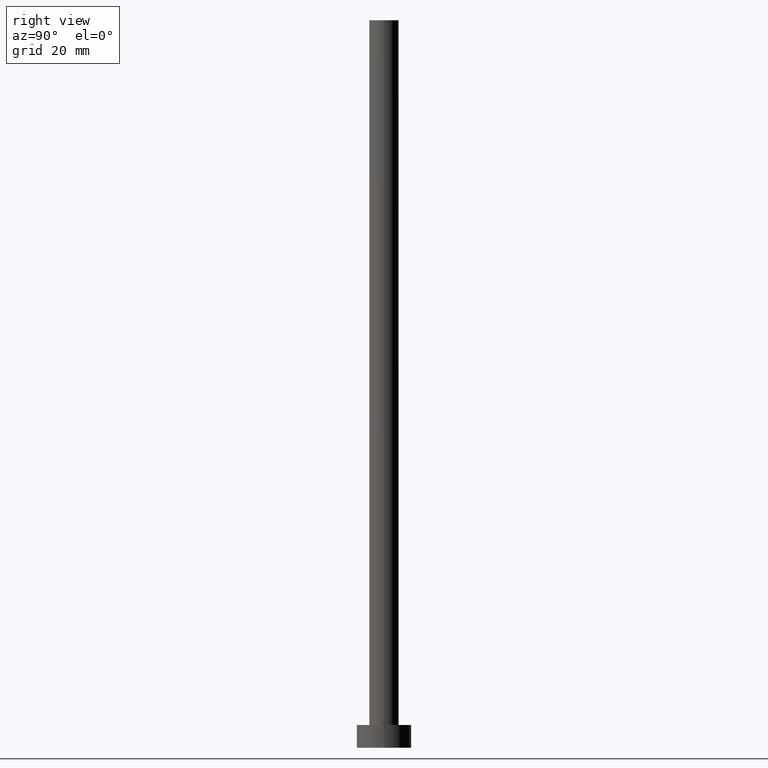
[diagram: clean part render]
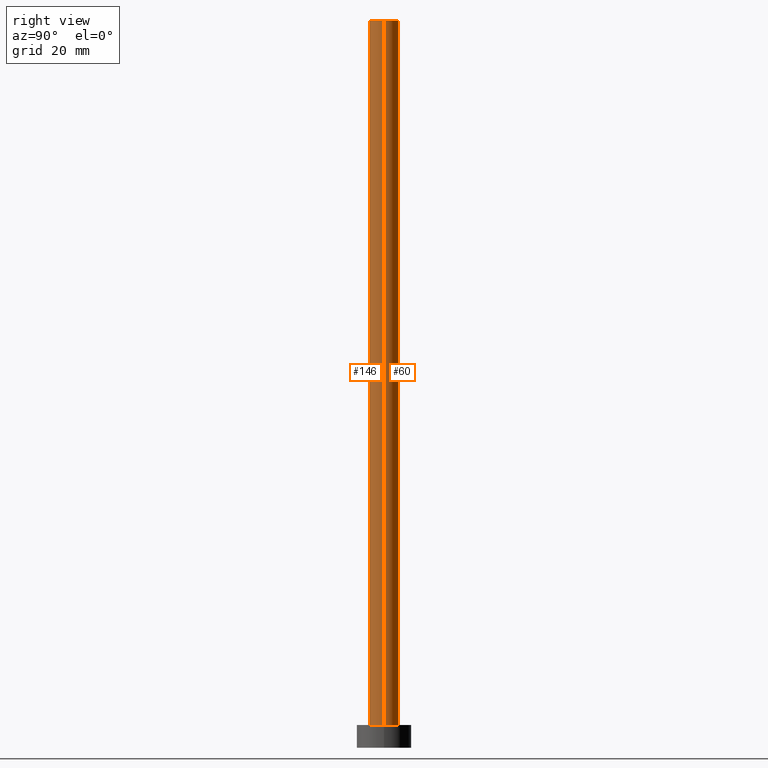
[diagram: same view with one multi-face feature highlighted, each face labeled with its STEP entity id]
A machine part, right view. The highlighted faces form ONE feature: a constant-radius fillet chain: 2 tangent blend faces with common blend radius 3.25 mm. The faces share edges in the B-rep.
Their STEP definitions:
[1] entity #60 (Cylinder):
#11 = CARTESIAN_POINT ( 'NONE',  ( 0.000000000000000000, 0.000000000000000000, 160.0000000000000000 ) ) ;
#13 = DIRECTION ( 'NONE',  ( -0.000000000000000000, -0.000000000000000000, -1.000000000000000000 ) ) ;
#16 = LINE ( 'NONE', #176, #105 ) ;
#24 = ORIENTED_EDGE ( 'NONE', *, *, #75, .F. ) ;
#31 = CIRCLE ( 'NONE', #249, 3.250000000000000444 ) ;
#32 = CARTESIAN_POINT ( 'NONE',  ( 0.000000000000000000, 0.000000000000000000, 160.0000000000000000 ) ) ;
#38 = ORIENTED_EDGE ( 'NONE', *, *, #86, .F. ) ;
#40 = VERTEX_POINT ( 'NONE', #66 ) ;
#56 = CARTESIAN_POINT ( 'NONE',  ( 3.250000000000000444, 3.980102097228898231E-16, 5.000000000000000000 ) ) ;
#59 = AXIS2_PLACEMENT_3D ( 'NONE', #112, #223, #198 ) ;
#60 = ADVANCED_FACE ( 'NONE', ( #188 ), #207, .T. ) ;
#66 = CARTESIAN_POINT ( 'NONE',  ( -3.250000000000000444, 0.000000000000000000, 5.000000000000000000 ) ) ;
#68 = VERTEX_POINT ( 'NONE', #56 ) ;
#75 = EDGE_CURVE ( 'NONE', #84, #40, #16, .T. ) ;
#80 = DIRECTION ( 'NONE',  ( 0.000000000000000000, 0.000000000000000000, 1.000000000000000000 ) ) ;
#84 = VERTEX_POINT ( 'NONE', #222 ) ;
#86 = EDGE_CURVE ( 'NONE', #127, #84, #31, .T. ) ;
#104 = ORIENTED_EDGE ( 'NONE', *, *, #120, .T. ) ;
#105 = VECTOR ( 'NONE', #13, 1000.000000000000000 ) ;
#107 = CARTESIAN_POINT ( 'NONE',  ( 3.250000000000000444, 3.980102097228898231E-16, 160.0000000000000000 ) ) ;
#112 = CARTESIAN_POINT ( 'NONE',  ( 0.000000000000000000, 0.000000000000000000, 5.000000000000000000 ) ) ;
#120 = EDGE_CURVE ( 'NONE', #127, #68, #216, .T. ) ;
#127 = VERTEX_POINT ( 'NONE', #107 ) ;
#129 = DIRECTION ( 'NONE',  ( -0.000000000000000000, -0.000000000000000000, -1.000000000000000000 ) ) ;
#132 = EDGE_LOOP ( 'NONE', ( #38, #104, #174, #24 ) ) ;
#151 = EDGE_CURVE ( 'NONE', #68, #40, #200, .T. ) ;
#165 = CARTESIAN_POINT ( 'NONE',  ( 3.250000000000000444, 3.980102097228898231E-16, 160.0000000000000000 ) ) ;
#172 = DIRECTION ( 'NONE',  ( 1.000000000000000000, 0.000000000000000000, 0.000000000000000000 ) ) ;
#174 = ORIENTED_EDGE ( 'NONE', *, *, #151, .T. ) ;
#176 = CARTESIAN_POINT ( 'NONE',  ( -3.250000000000000444, 0.000000000000000000, 160.0000000000000000 ) ) ;
#180 = DIRECTION ( 'NONE',  ( -0.000000000000000000, -0.000000000000000000, -1.000000000000000000 ) ) ;
#188 = FACE_OUTER_BOUND ( 'NONE', #132, .T. ) ;
#191 = DIRECTION ( 'NONE',  ( -1.000000000000000000, 0.000000000000000000, 0.000000000000000000 ) ) ;
#198 = DIRECTION ( 'NONE',  ( 1.000000000000000000, 0.000000000000000000, 0.000000000000000000 ) ) ;
#200 = CIRCLE ( 'NONE', #59, 3.250000000000000444 ) ;
#207 = CYLINDRICAL_SURFACE ( 'NONE', #255, 3.250000000000000444 ) ;
#208 = VECTOR ( 'NONE', #180, 1000.000000000000000 ) ;
#216 = LINE ( 'NONE', #165, #208 ) ;
#222 = CARTESIAN_POINT ( 'NONE',  ( -3.250000000000000444, 0.000000000000000000, 160.0000000000000000 ) ) ;
#223 = DIRECTION ( 'NONE',  ( 0.000000000000000000, 0.000000000000000000, 1.000000000000000000 ) ) ;
#249 = AXIS2_PLACEMENT_3D ( 'NONE', #11, #80, #172 ) ;
#255 = AXIS2_PLACEMENT_3D ( 'NONE', #32, #129, #191 ) ;
[2] entity #146 (Cylinder):
#2 = FACE_OUTER_BOUND ( 'NONE', #61, .T. ) ;
#13 = DIRECTION ( 'NONE',  ( -0.000000000000000000, -0.000000000000000000, -1.000000000000000000 ) ) ;
#16 = LINE ( 'NONE', #176, #105 ) ;
#17 = AXIS2_PLACEMENT_3D ( 'NONE', #103, #232, #22 ) ;
#22 = DIRECTION ( 'NONE',  ( 1.000000000000000000, 0.000000000000000000, 0.000000000000000000 ) ) ;
#26 = DIRECTION ( 'NONE',  ( -1.000000000000000000, 0.000000000000000000, 0.000000000000000000 ) ) ;
#28 = CIRCLE ( 'NONE', #124, 3.250000000000000444 ) ;
#40 = VERTEX_POINT ( 'NONE', #66 ) ;
#47 = CARTESIAN_POINT ( 'NONE',  ( 0.000000000000000000, 0.000000000000000000, 160.0000000000000000 ) ) ;
#48 = EDGE_CURVE ( 'NONE', #84, #127, #149, .T. ) ;
#56 = CARTESIAN_POINT ( 'NONE',  ( 3.250000000000000444, 3.980102097228898231E-16, 5.000000000000000000 ) ) ;
#61 = EDGE_LOOP ( 'NONE', ( #119, #98, #213, #154 ) ) ;
#63 = CYLINDRICAL_SURFACE ( 'NONE', #126, 3.250000000000000444 ) ;
#66 = CARTESIAN_POINT ( 'NONE',  ( -3.250000000000000444, 0.000000000000000000, 5.000000000000000000 ) ) ;
#68 = VERTEX_POINT ( 'NONE', #56 ) ;
#75 = EDGE_CURVE ( 'NONE', #84, #40, #16, .T. ) ;
#84 = VERTEX_POINT ( 'NONE', #222 ) ;
#87 = DIRECTION ( 'NONE',  ( 1.000000000000000000, 0.000000000000000000, 0.000000000000000000 ) ) ;
#98 = ORIENTED_EDGE ( 'NONE', *, *, #48, .F. ) ;
#103 = CARTESIAN_POINT ( 'NONE',  ( 0.000000000000000000, 0.000000000000000000, 160.0000000000000000 ) ) ;
#105 = VECTOR ( 'NONE', #13, 1000.000000000000000 ) ;
#107 = CARTESIAN_POINT ( 'NONE',  ( 3.250000000000000444, 3.980102097228898231E-16, 160.0000000000000000 ) ) ;
#119 = ORIENTED_EDGE ( 'NONE', *, *, #120, .F. ) ;
#120 = EDGE_CURVE ( 'NONE', #127, #68, #216, .T. ) ;
#121 = DIRECTION ( 'NONE',  ( -0.000000000000000000, -0.000000000000000000, -1.000000000000000000 ) ) ;
#124 = AXIS2_PLACEMENT_3D ( 'NONE', #214, #163, #87 ) ;
#126 = AXIS2_PLACEMENT_3D ( 'NONE', #47, #121, #26 ) ;
#127 = VERTEX_POINT ( 'NONE', #107 ) ;
#131 = EDGE_CURVE ( 'NONE', #40, #68, #28, .T. ) ;
#146 = ADVANCED_FACE ( 'NONE', ( #2 ), #63, .T. ) ;
#149 = CIRCLE ( 'NONE', #17, 3.250000000000000444 ) ;
#154 = ORIENTED_EDGE ( 'NONE', *, *, #131, .T. ) ;
#163 = DIRECTION ( 'NONE',  ( 0.000000000000000000, 0.000000000000000000, 1.000000000000000000 ) ) ;
#165 = CARTESIAN_POINT ( 'NONE',  ( 3.250000000000000444, 3.980102097228898231E-16, 160.0000000000000000 ) ) ;
#176 = CARTESIAN_POINT ( 'NONE',  ( -3.250000000000000444, 0.000000000000000000, 160.0000000000000000 ) ) ;
#180 = DIRECTION ( 'NONE',  ( -0.000000000000000000, -0.000000000000000000, -1.000000000000000000 ) ) ;
#208 = VECTOR ( 'NONE', #180, 1000.000000000000000 ) ;
#213 = ORIENTED_EDGE ( 'NONE', *, *, #75, .T. ) ;
#214 = CARTESIAN_POINT ( 'NONE',  ( 0.000000000000000000, 0.000000000000000000, 5.000000000000000000 ) ) ;
#216 = LINE ( 'NONE', #165, #208 ) ;
#222 = CARTESIAN_POINT ( 'NONE',  ( -3.250000000000000444, 0.000000000000000000, 160.0000000000000000 ) ) ;
#232 = DIRECTION ( 'NONE',  ( 0.000000000000000000, 0.000000000000000000, 1.000000000000000000 ) ) ;